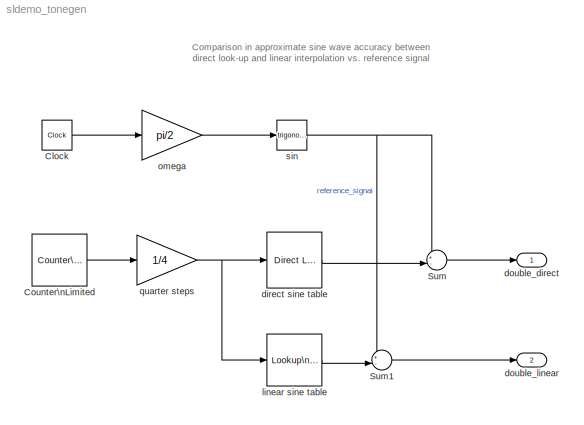
MODEL sldemo_tonegen
KIND model
CONFIG StopFcn = subplot(2,1,1), plot(tonegenOut.time, tonegenOut.signals(1).values); grid\nsubplot(2,1,2), plot(tonegenOut.time, tonegenOut.signals(2).values); grid\n
BLOCK [Clock] Clock
  Decimation = 10
BLOCK [Reference] Counter\nLimited  REF=simulink/Sources/Counter\nLimited
  Ports = [0, 1]
  ShowPortLabels = on
  SourceBlock = simulink/Sources/Counter\nLimited
  SourceType = Counter Limited
  tsamp = -1
  uplimit = 1023
BLOCK [Sum] Sum
  IconShape = round
  InputSameDT = off
  Inputs = +-|
  OutDataTypeMode = Inherit via internal rule
  Ports = [2, 1]
  SaturateOnIntegerOverflow = off
BLOCK [Sum] Sum1
  IconShape = round
  InputSameDT = off
  Inputs = +-|
  OutDataTypeMode = Inherit via internal rule
  Ports = [2, 1]
  SaturateOnIntegerOverflow = off
BLOCK [Reference] direct sine table  REF=simulink/Lookup\nTables/Direct Lookup\nTable (n-D)
  Ports = [1, 1]
  SourceBlock = simulink/Lookup\nTables/Direct Lookup\nTable (n-D)
  SourceType = LookupNDDirect
  clipFlag = Warning
  explicitNumDims = 1
  maskTabDims = 1
  mxTable = sin( 2*pi * (0:255)/256)'
  outDims = Element
  tabIsInput = off
BLOCK [Outport] double_direct
  BusOutputAsStruct = off
  IconDisplay = Port number
BLOCK [Outport] double_linear
  BusOutputAsStruct = off
  IconDisplay = Port number
  Port = 2
BLOCK [Reference] linear sine table  REF=simulink/Lookup\nTables/Lookup\nTable (n-D)
  Ports = [1, 1]
  SourceBlock = simulink/Lookup\nTables/Lookup\nTable (n-D)
  SourceType = LookupNDInterp
  bp1 = [0:256]
  bp2 = [10,22,31]
  bp3 = [1:3]
  bp4 = [1:3]
  bpcell = { [1:3], [1:3] }
  cacheBpFlag = on
  explicitNumDims = 2
  extrapMethod = None - Clip
  interpMethod = Linear
  numDimsPopupSelect = 1
  rangeErrorMode = Warning
  searchMode = Linear Search
  tableData = sin( 2*pi * (0:256)/256 )'
  vectorInputFlag = off
BLOCK [Gain] omega
  Gain = pi/2
  OutDataTypeMode = Inherit via internal rule
  ParameterDataTypeMode = Inherit via internal rule
  SaturateOnIntegerOverflow = off
BLOCK [Gain] quarter steps
  Gain = 1/4
  OutDataType = float('double')
  OutDataTypeMode = Specify via dialog
  ParameterDataTypeMode = Inherit via internal rule
  SaturateOnIntegerOverflow = off
BLOCK [Trigonometry] sin
  Ports = [1, 1]
ANNOTATION (root): Comparison in approximate sine wave accuracy between \ndirect look-up and linear interpolation vs. reference signal
LINE Clock:1 -> omega:1
LINE Counter\nLimited:1 -> quarter steps:1
LINE Sum1:1 -> double_linear:1
LINE Sum:1 -> double_direct:1
LINE direct sine table:1 -> Sum:2
LINE linear sine table:1 -> Sum1:2
LINE omega:1 -> sin:1
NET quarter steps:1 -> direct sine table:1, linear sine table:1
NET sin:1 -> Sum1:1, Sum:1
note: NET lines group one-source signal fan-out (src -> all destinations, sorted); 1:1 wires keep LINE
